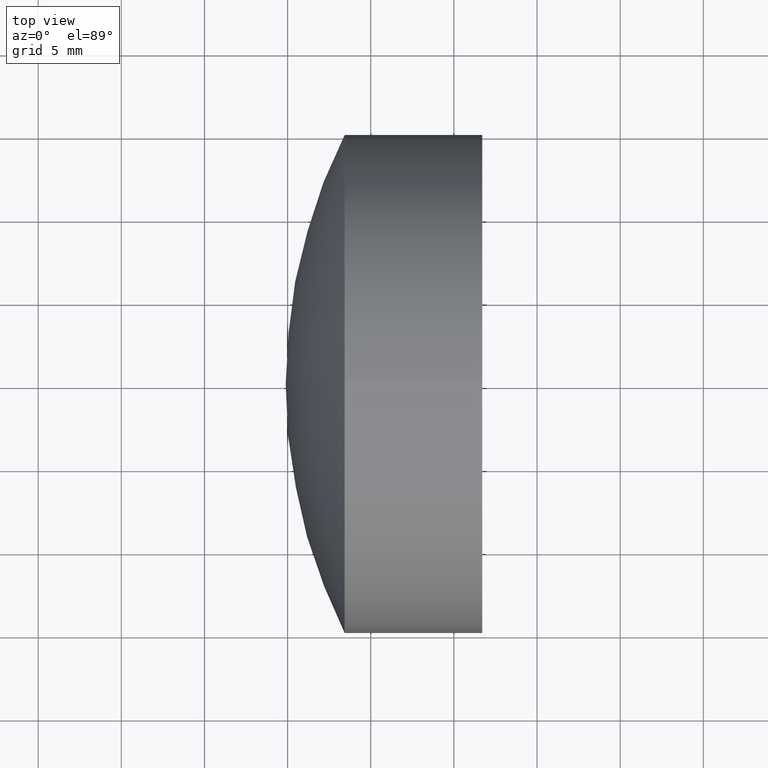
[diagram: clean part render]
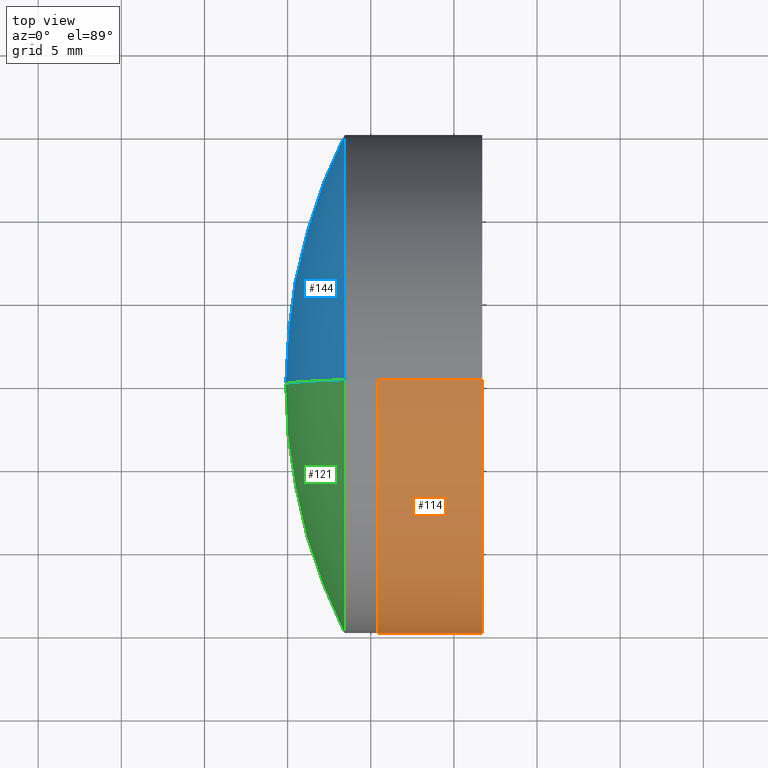
[diagram: same view with three faces highlighted in distinct colors, each labeled with its STEP entity id]
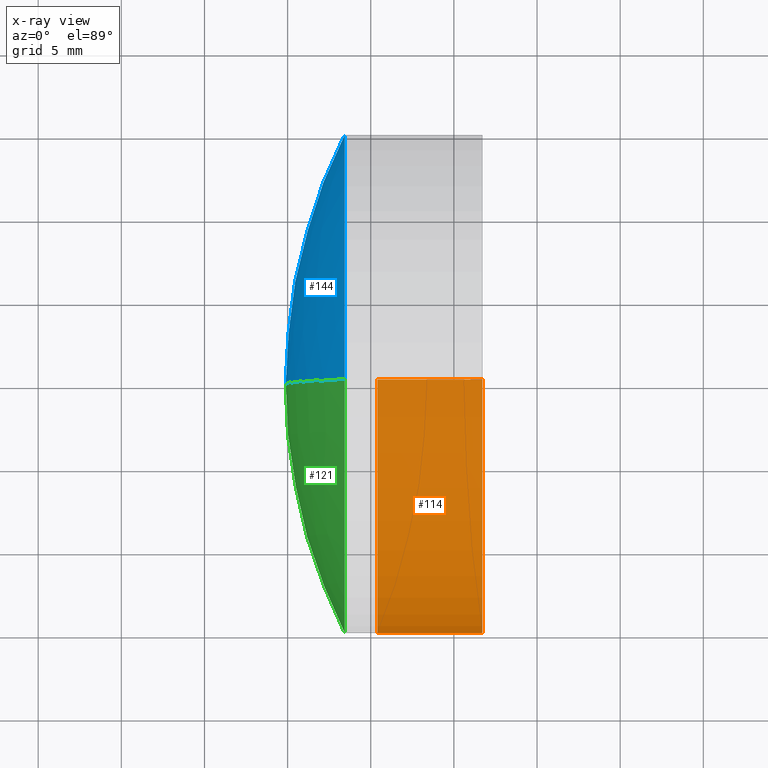
[diagram: x-ray of the same camera — body ghosted, the three highlighted faces saturated]
A machine part, top view with three faces highlighted in distinct colors.
The next image is the same camera in x-ray (body ghosted, the three faces saturated) — at least one of them is partly hidden behind the body in this view.
Their STEP definitions:

[orange] entity #114 — the highlighted cylindrical surface (partial cylindrical patch) has radius 15 mm, axis along (-1, -0, -0).
#16 = EDGE_LOOP ( 'NONE', ( #152, #48, #252, #224 ) ) ;
#35 = AXIS2_PLACEMENT_3D ( 'NONE', #91, #99, #76 ) ;
#48 = ORIENTED_EDGE ( 'NONE', *, *, #340, .T. ) ;
#69 = CIRCLE ( 'NONE', #79, 15.00000000000000900 ) ;
#76 = DIRECTION ( 'NONE',  ( 0.0000000000000000000, 0.0000000000000000000, 1.000000000000000000 ) ) ;
#79 = AXIS2_PLACEMENT_3D ( 'NONE', #128, #302, #278 ) ;
#84 = CYLINDRICAL_SURFACE ( 'NONE', #35, 15.00000000000000900 ) ;
#88 = CARTESIAN_POINT ( 'NONE',  ( -0.5519199926577972300, 0.0000000000000000000, 15.00000000000000900 ) ) ;
#91 = CARTESIAN_POINT ( 'NONE',  ( -0.5519199926577972300, 0.0000000000000000000, 0.0000000000000000000 ) ) ;
#99 = DIRECTION ( 'NONE',  ( -1.000000000000000000, -0.0000000000000000000, -0.0000000000000000000 ) ) ;
#105 = DIRECTION ( 'NONE',  ( -1.000000000000000000, -0.0000000000000000000, -0.0000000000000000000 ) ) ;
#114 = ADVANCED_FACE ( 'NONE', ( #275 ), #84, .T. ) ;
#117 = CARTESIAN_POINT ( 'NONE',  ( 106.7084432076796400, -1.836970198721022100E-015, 14.99999999999994000 ) ) ;
#122 = DIRECTION ( 'NONE',  ( -1.000000000000000000, -0.0000000000000000000, -0.0000000000000000000 ) ) ;
#128 = CARTESIAN_POINT ( 'NONE',  ( 100.3989811747571500, 0.0000000000000000000, 0.0000000000000000000 ) ) ;
#129 = VERTEX_POINT ( 'NONE', #153 ) ;
#137 = DIRECTION ( 'NONE',  ( 0.0000000000000000000, 0.0000000000000000000, 1.000000000000000000 ) ) ;
#145 = VECTOR ( 'NONE', #105, 1000.000000000000000 ) ;
#147 = AXIS2_PLACEMENT_3D ( 'NONE', #216, #304, #137 ) ;
#152 = ORIENTED_EDGE ( 'NONE', *, *, #249, .F. ) ;
#153 = CARTESIAN_POINT ( 'NONE',  ( 100.3989811747571500, 1.836970198721031200E-015, -15.00000000000001100 ) ) ;
#159 = EDGE_CURVE ( 'NONE', #236, #336, #258, .T. ) ;
#172 = CARTESIAN_POINT ( 'NONE',  ( 100.3989811747571500, 0.0000000000000000000, 15.00000000000001100 ) ) ;
#173 = VERTEX_POINT ( 'NONE', #276 ) ;
#206 = EDGE_CURVE ( 'NONE', #129, #336, #69, .T. ) ;
#216 = CARTESIAN_POINT ( 'NONE',  ( 106.7084432076796400, 0.0000000000000000000, 0.0000000000000000000 ) ) ;
#224 = ORIENTED_EDGE ( 'NONE', *, *, #206, .F. ) ;
#236 = VERTEX_POINT ( 'NONE', #117 ) ;
#249 = EDGE_CURVE ( 'NONE', #173, #129, #328, .T. ) ;
#252 = ORIENTED_EDGE ( 'NONE', *, *, #159, .T. ) ;
#258 = LINE ( 'NONE', #88, #145 ) ;
#264 = VECTOR ( 'NONE', #122, 1000.000000000000000 ) ;
#275 = FACE_OUTER_BOUND ( 'NONE', #16, .T. ) ;
#276 = CARTESIAN_POINT ( 'NONE',  ( 106.7084432076796400, 0.0000000000000000000, -14.99999999999994000 ) ) ;
#278 = DIRECTION ( 'NONE',  ( 0.0000000000000000000, 0.0000000000000000000, 1.000000000000000000 ) ) ;
#283 = CIRCLE ( 'NONE', #147, 15.00000000000000900 ) ;
#297 = CARTESIAN_POINT ( 'NONE',  ( -0.5519199926577972300, 1.836970198721030800E-015, -15.00000000000000900 ) ) ;
#302 = DIRECTION ( 'NONE',  ( -1.000000000000000000, -0.0000000000000000000, -0.0000000000000000000 ) ) ;
#304 = DIRECTION ( 'NONE',  ( -1.000000000000000000, -0.0000000000000000000, -0.0000000000000000000 ) ) ;
#328 = LINE ( 'NONE', #297, #264 ) ;
#336 = VERTEX_POINT ( 'NONE', #172 ) ;
#340 = EDGE_CURVE ( 'NONE', #173, #236, #283, .T. ) ;

[blue] entity #144 — the highlighted spherical surface has radius 33.5 mm.
#20 = AXIS2_PLACEMENT_3D ( 'NONE', #115, #132, #148 ) ;
#26 = CARTESIAN_POINT ( 'NONE',  ( 98.43075223754873100, 1.836970198721029600E-015, -15.00000000000000500 ) ) ;
#28 = DIRECTION ( 'NONE',  ( 0.0000000000000000000, 0.0000000000000000000, -1.000000000000000000 ) ) ;
#30 = DIRECTION ( 'NONE',  ( 0.0000000000000000000, 1.000000000000000000, 0.0000000000000000000 ) ) ;
#37 = ORIENTED_EDGE ( 'NONE', *, *, #296, .T. ) ;
#50 = AXIS2_PLACEMENT_3D ( 'NONE', #64, #290, #307 ) ;
#51 = ORIENTED_EDGE ( 'NONE', *, *, #149, .F. ) ;
#59 = VERTEX_POINT ( 'NONE', #26 ) ;
#64 = CARTESIAN_POINT ( 'NONE',  ( 98.43075223754873100, 0.0000000000000000000, 0.0000000000000000000 ) ) ;
#73 = VERTEX_POINT ( 'NONE', #338 ) ;
#97 = DIRECTION ( 'NONE',  ( 0.0000000000000000000, -1.000000000000000000, 0.0000000000000000000 ) ) ;
#98 = AXIS2_PLACEMENT_3D ( 'NONE', #287, #30, #194 ) ;
#107 = EDGE_CURVE ( 'NONE', #162, #59, #142, .T. ) ;
#111 = CIRCLE ( 'NONE', #20, 33.50000000000001400 ) ;
#115 = CARTESIAN_POINT ( 'NONE',  ( 128.3848838390490500, 0.0000000000000000000, -2.684811241742861700E-015 ) ) ;
#132 = DIRECTION ( 'NONE',  ( -0.0000000000000000000, 1.000000000000000000, 1.224646799147353200E-016 ) ) ;
#142 = CIRCLE ( 'NONE', #50, 14.99999999999999600 ) ;
#144 = ADVANCED_FACE ( 'NONE', ( #342 ), #203, .T. ) ;
#148 = DIRECTION ( 'NONE',  ( 0.0000000000000000000, -1.224646799147353000E-016, 1.000000000000000000 ) ) ;
#149 = EDGE_CURVE ( 'NONE', #162, #73, #160, .T. ) ;
#160 = CIRCLE ( 'NONE', #298, 33.50000000000001400 ) ;
#162 = VERTEX_POINT ( 'NONE', #306 ) ;
#180 = EDGE_LOOP ( 'NONE', ( #244, #37, #51 ) ) ;
#194 = DIRECTION ( 'NONE',  ( 0.0000000000000000000, 0.0000000000000000000, 1.000000000000000000 ) ) ;
#203 = SPHERICAL_SURFACE ( 'NONE', #98, 33.50000000000001400 ) ;
#244 = ORIENTED_EDGE ( 'NONE', *, *, #107, .T. ) ;
#262 = CARTESIAN_POINT ( 'NONE',  ( 128.3848838390490500, 0.0000000000000000000, -2.684811241742861700E-015 ) ) ;
#287 = CARTESIAN_POINT ( 'NONE',  ( 128.3848838390490500, 0.0000000000000000000, -2.684811241742861700E-015 ) ) ;
#290 = DIRECTION ( 'NONE',  ( -1.000000000000000000, -0.0000000000000000000, -0.0000000000000000000 ) ) ;
#296 = EDGE_CURVE ( 'NONE', #59, #73, #111, .T. ) ;
#298 = AXIS2_PLACEMENT_3D ( 'NONE', #262, #97, #28 ) ;
#306 = CARTESIAN_POINT ( 'NONE',  ( 98.43075223754873100, 0.0000000000000000000, 15.00000000000000200 ) ) ;
#307 = DIRECTION ( 'NONE',  ( 0.0000000000000000000, 0.0000000000000000000, 1.000000000000000000 ) ) ;
#338 = CARTESIAN_POINT ( 'NONE',  ( 94.88488383904903900, 0.0000000000000000000, -6.335278531710440900E-016 ) ) ;
#342 = FACE_OUTER_BOUND ( 'NONE', #180, .T. ) ;

[green] entity #121 — the highlighted spherical surface has radius 33.5 mm.
#4 = ORIENTED_EDGE ( 'NONE', *, *, #215, .T. ) ;
#13 = EDGE_LOOP ( 'NONE', ( #78, #4, #33 ) ) ;
#17 = DIRECTION ( 'NONE',  ( 0.0000000000000000000, 1.000000000000000000, 0.0000000000000000000 ) ) ;
#20 = AXIS2_PLACEMENT_3D ( 'NONE', #115, #132, #148 ) ;
#26 = CARTESIAN_POINT ( 'NONE',  ( 98.43075223754873100, 1.836970198721029600E-015, -15.00000000000000500 ) ) ;
#28 = DIRECTION ( 'NONE',  ( 0.0000000000000000000, 0.0000000000000000000, -1.000000000000000000 ) ) ;
#33 = ORIENTED_EDGE ( 'NONE', *, *, #149, .T. ) ;
#59 = VERTEX_POINT ( 'NONE', #26 ) ;
#65 = CARTESIAN_POINT ( 'NONE',  ( 128.3848838390490500, 0.0000000000000000000, -2.684811241742861700E-015 ) ) ;
#68 = DIRECTION ( 'NONE',  ( -1.000000000000000000, -0.0000000000000000000, -0.0000000000000000000 ) ) ;
#73 = VERTEX_POINT ( 'NONE', #338 ) ;
#75 = AXIS2_PLACEMENT_3D ( 'NONE', #116, #68, #330 ) ;
#78 = ORIENTED_EDGE ( 'NONE', *, *, #296, .F. ) ;
#87 = FACE_OUTER_BOUND ( 'NONE', #13, .T. ) ;
#97 = DIRECTION ( 'NONE',  ( 0.0000000000000000000, -1.000000000000000000, 0.0000000000000000000 ) ) ;
#111 = CIRCLE ( 'NONE', #20, 33.50000000000001400 ) ;
#115 = CARTESIAN_POINT ( 'NONE',  ( 128.3848838390490500, 0.0000000000000000000, -2.684811241742861700E-015 ) ) ;
#116 = CARTESIAN_POINT ( 'NONE',  ( 98.43075223754873100, 0.0000000000000000000, 0.0000000000000000000 ) ) ;
#121 = ADVANCED_FACE ( 'NONE', ( #87 ), #270, .T. ) ;
#132 = DIRECTION ( 'NONE',  ( -0.0000000000000000000, 1.000000000000000000, 1.224646799147353200E-016 ) ) ;
#148 = DIRECTION ( 'NONE',  ( 0.0000000000000000000, -1.224646799147353000E-016, 1.000000000000000000 ) ) ;
#149 = EDGE_CURVE ( 'NONE', #162, #73, #160, .T. ) ;
#160 = CIRCLE ( 'NONE', #298, 33.50000000000001400 ) ;
#162 = VERTEX_POINT ( 'NONE', #306 ) ;
#189 = CIRCLE ( 'NONE', #75, 14.99999999999999600 ) ;
#195 = DIRECTION ( 'NONE',  ( 0.0000000000000000000, 0.0000000000000000000, 1.000000000000000000 ) ) ;
#215 = EDGE_CURVE ( 'NONE', #59, #162, #189, .T. ) ;
#262 = CARTESIAN_POINT ( 'NONE',  ( 128.3848838390490500, 0.0000000000000000000, -2.684811241742861700E-015 ) ) ;
#270 = SPHERICAL_SURFACE ( 'NONE', #311, 33.50000000000001400 ) ;
#296 = EDGE_CURVE ( 'NONE', #59, #73, #111, .T. ) ;
#298 = AXIS2_PLACEMENT_3D ( 'NONE', #262, #97, #28 ) ;
#306 = CARTESIAN_POINT ( 'NONE',  ( 98.43075223754873100, 0.0000000000000000000, 15.00000000000000200 ) ) ;
#311 = AXIS2_PLACEMENT_3D ( 'NONE', #65, #17, #195 ) ;
#330 = DIRECTION ( 'NONE',  ( 0.0000000000000000000, 0.0000000000000000000, 1.000000000000000000 ) ) ;
#338 = CARTESIAN_POINT ( 'NONE',  ( 94.88488383904903900, 0.0000000000000000000, -6.335278531710440900E-016 ) ) ;